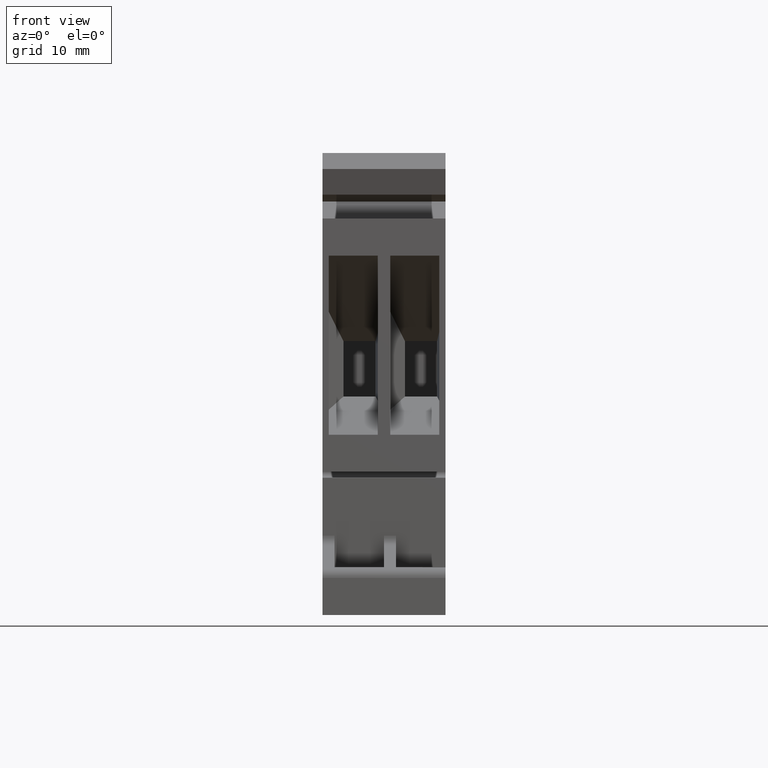
[diagram: clean part render]
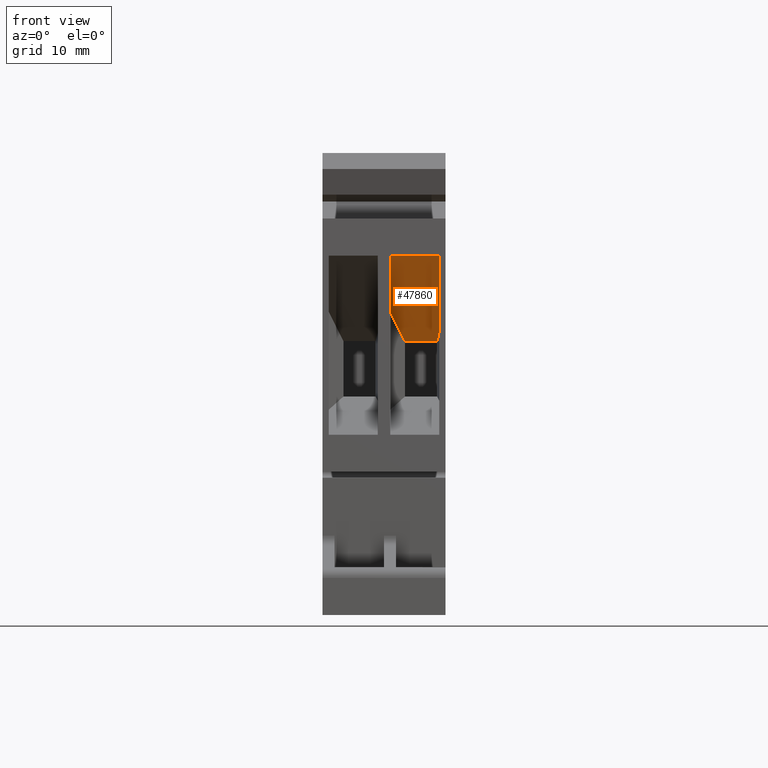
[diagram: same view with one face highlighted and labeled with its STEP entity id]
A machine part, front view. The second image highlights one B-rep face of the part: STEP entity #47860.
In plain terms, the highlighted planar face has unit normal (-0, 0.7568, 0.6536).
Its self-contained STEP definition (entity closure, byte-faithful):
#21020=CARTESIAN_POINT('',(-44.8520985338077,34.3295237515583,9.775));
#21030=VERTEX_POINT('',#21020);
#21060=CARTESIAN_POINT('',(-44.8520985338077,34.3295237515583,10.3));
#21070=DIRECTION('',(0.,0.,1.));
#21080=VECTOR('',#21070,1.);
#21090=LINE('',#21060,#21080);
#21100=CARTESIAN_POINT('',(-44.8520985338077,34.3295237515583,5.675));
#21110=VERTEX_POINT('',#21100);
#21120=EDGE_CURVE('',#21110,#21030,#21090,.T.);
#47400=CARTESIAN_POINT('',(-44.8520985338077,34.3295237515583,6.9));
#47410=DIRECTION('',(0.756823007769156,0.653619870346096,0.));
#47420=DIRECTION('',(0.653619870346096,-0.756823007769156,0.));
#47430=AXIS2_PLACEMENT_3D('',#47400,#47410,#47420);
#47440=PLANE('',#47430);
#47450=CARTESIAN_POINT('',(-38.6770985338076,27.1795237515583,10.3));
#47460=DIRECTION('',(0.,0.,-1.));
#47470=VECTOR('',#47460,1.);
#47480=LINE('',#47450,#47470);
#47490=CARTESIAN_POINT('',(-38.6770985338076,27.1795237515583,
9.60000000000001));
#47500=VERTEX_POINT('',#47490);
#47510=CARTESIAN_POINT('',(-38.6770985338076,27.1795237515583,6.9));
#47520=VERTEX_POINT('',#47510);
#47530=EDGE_CURVE('',#47500,#47520,#47480,.T.);
#47540=ORIENTED_EDGE('',*,*,#47530,.F.);
#47550=CARTESIAN_POINT('',(-23.4376536701711,9.53385075155829,
15.698497594321));
#47560=DIRECTION('',(0.611526032477599,-0.70808277444774,
0.353064719467406));
#47570=VECTOR('',#47560,1.);
#47580=LINE('',#47550,#47570);
#47590=CARTESIAN_POINT('',(-40.7988607730795,29.6363010812415,5.675));
#47600=VERTEX_POINT('',#47590);
#47610=EDGE_CURVE('',#47600,#47520,#47580,.T.);
#47620=ORIENTED_EDGE('',*,*,#47610,.T.);
#47630=CARTESIAN_POINT('',(-23.4376536701711,9.5338507515583,5.675));
#47640=DIRECTION('',(-0.653619870346096,0.756823007769156,0.));
#47650=VECTOR('',#47640,1.);
#47660=LINE('',#47630,#47650);
#47670=EDGE_CURVE('',#47600,#21110,#47660,.T.);
#47680=ORIENTED_EDGE('',*,*,#47670,.F.);
#47690=ORIENTED_EDGE('',*,*,#21120,.F.);
#47700=CARTESIAN_POINT('',(-23.4376536701711,9.5338507515583,9.775));
#47710=DIRECTION('',(0.653619870346096,-0.756823007769156,0.));
#47720=VECTOR('',#47710,1.);
#47730=LINE('',#47700,#47720);
#47740=CARTESIAN_POINT('',(-39.3285392448474,27.9338235222359,
9.77500000000001));
#47750=VERTEX_POINT('',#47740);
#47760=EDGE_CURVE('',#21030,#47750,#47730,.T.);
#47770=ORIENTED_EDGE('',*,*,#47760,.F.);
#47780=CARTESIAN_POINT('',(-23.4376536701711,9.5338507515583,
5.50614647512631));
#47790=DIRECTION('',(0.643771391053407,-0.745419505430254,
-0.172939749581399));
#47800=VECTOR('',#47790,1.);
#47810=LINE('',#47780,#47800);
#47820=EDGE_CURVE('',#47750,#47500,#47810,.T.);
#47830=ORIENTED_EDGE('',*,*,#47820,.F.);
#47840=EDGE_LOOP('',(#47830,#47770,#47690,#47680,#47620,#47540));
#47850=FACE_OUTER_BOUND('',#47840,.T.);
#47860=ADVANCED_FACE('',(#47850),#47440,.F.);